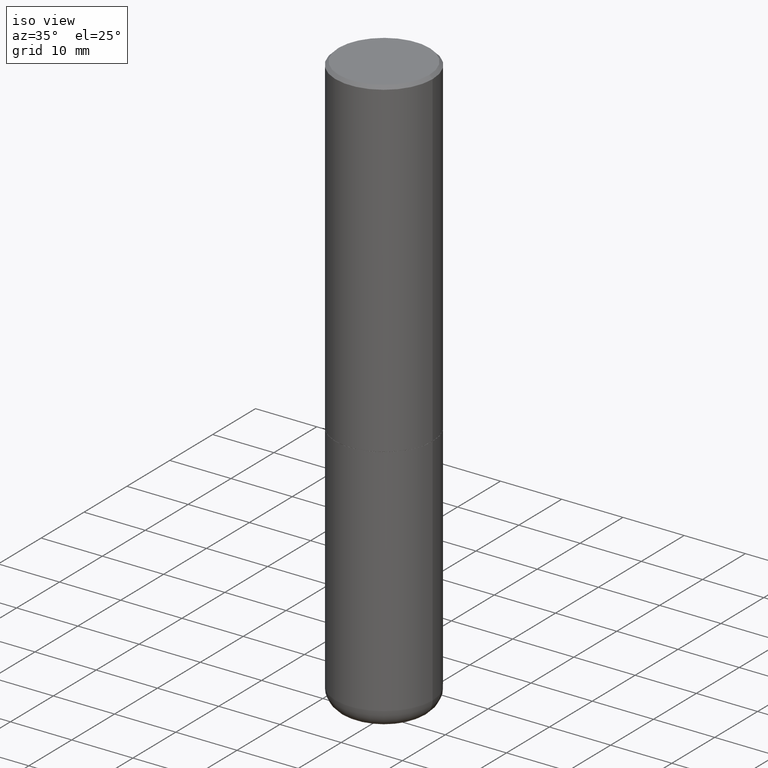
[diagram: clean part render]
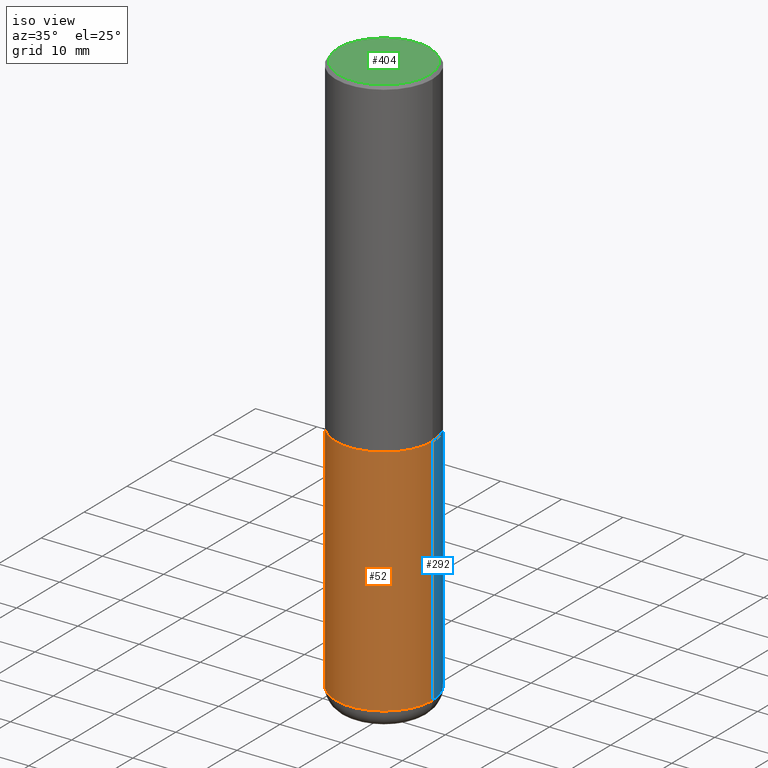
[diagram: same view with three faces highlighted in distinct colors, each labeled with its STEP entity id]
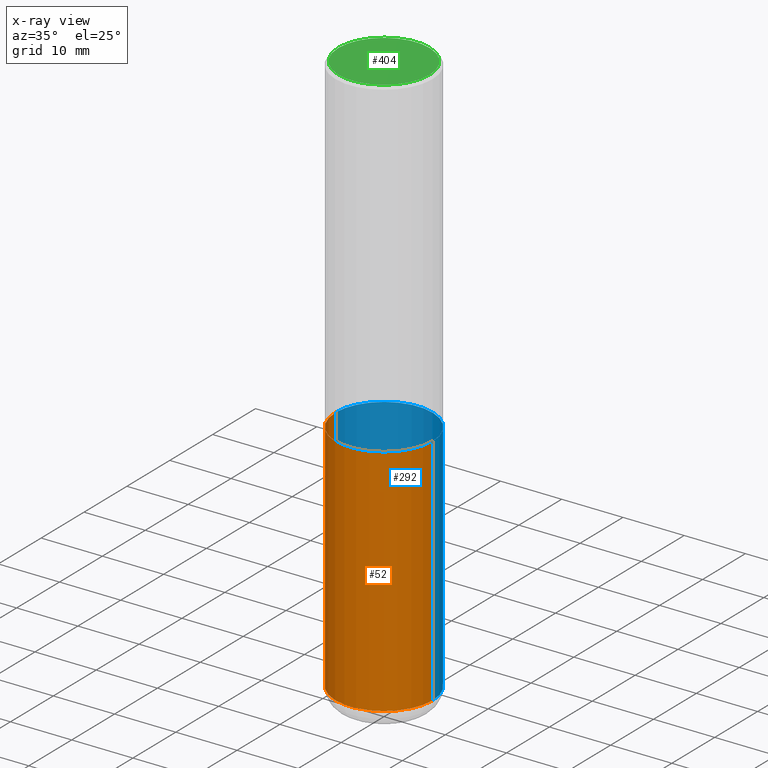
[diagram: x-ray of the same camera — body ghosted, the three highlighted faces saturated]
A machine part, iso view with three faces highlighted in distinct colors.
The next image is the same camera in x-ray (body ghosted, the three faces saturated) — at least one of them is partly hidden behind the body in this view.
Their STEP definitions:

[orange] entity #52 — the highlighted cylindrical surface (partial cylindrical patch) has radius 7.9375 mm, axis along (-0, 0, 1).
#10 = CARTESIAN_POINT ( 'NONE',  ( -0.3125000000000000000, -7.826299479965492348E-15, -2.125000000000000000 ) ) ;
#13 = DIRECTION ( 'NONE',  ( -2.445468806185136877E-29, 3.491481338843145188E-15, 1.000000000000000000 ) ) ;
#29 = FACE_OUTER_BOUND ( 'NONE', #123, .T. ) ;
#38 = DIRECTION ( 'NONE',  ( -2.445468806185136597E-29, 3.491481338843145583E-15, 1.000000000000000000 ) ) ;
#52 = ADVANCED_FACE ( 'NONE', ( #29 ), #299, .T. ) ;
#53 = CARTESIAN_POINT ( 'NONE',  ( 0.000000000000000000, 0.000000000000000000, 0.000000000000000000 ) ) ;
#63 = AXIS2_PLACEMENT_3D ( 'NONE', #113, #448, #136 ) ;
#83 = LINE ( 'NONE', #240, #411 ) ;
#113 = CARTESIAN_POINT ( 'NONE',  ( 5.196621213143415268E-29, -7.419397845041685201E-15, -2.125000000000000000 ) ) ;
#123 = EDGE_LOOP ( 'NONE', ( #414, #270, #197, #392 ) ) ;
#136 = DIRECTION ( 'NONE',  ( 1.000000000000000000, -6.982962677686265133E-15, 0.000000000000000000 ) ) ;
#144 = EDGE_CURVE ( 'NONE', #225, #449, #417, .T. ) ;
#163 = CARTESIAN_POINT ( 'NONE',  ( 0.3125000000000000000, -1.485626905016688558E-14, -3.630004569232299971 ) ) ;
#171 = CARTESIAN_POINT ( 'NONE',  ( 0.3125000000000000000, -9.601573681818641971E-15, -2.125000000000000000 ) ) ;
#172 = DIRECTION ( 'NONE',  ( -2.445468806185136597E-29, 3.491481338843145583E-15, 1.000000000000000000 ) ) ;
#180 = DIRECTION ( 'NONE',  ( 1.000000000000000000, -6.982962677686266711E-15, 4.876176775795936353E-29 ) ) ;
#182 = EDGE_CURVE ( 'NONE', #199, #449, #83, .T. ) ;
#197 = ORIENTED_EDGE ( 'NONE', *, *, #182, .T. ) ;
#199 = VERTEX_POINT ( 'NONE', #163 ) ;
#211 = AXIS2_PLACEMENT_3D ( 'NONE', #53, #172, #180 ) ;
#225 = VERTEX_POINT ( 'NONE', #10 ) ;
#229 = VECTOR ( 'NONE', #13, 39.37007874015748143 ) ;
#240 = CARTESIAN_POINT ( 'NONE',  ( 0.3125000000000000000, -2.182175836776958347E-15, 1.523805242436230075E-29 ) ) ;
#248 = EDGE_CURVE ( 'NONE', #461, #225, #424, .T. ) ;
#250 = CIRCLE ( 'NONE', #434, 0.3125000000000000000 ) ;
#270 = ORIENTED_EDGE ( 'NONE', *, *, #322, .T. ) ;
#299 = CYLINDRICAL_SURFACE ( 'NONE', #211, 0.3125000000000000000 ) ;
#322 = EDGE_CURVE ( 'NONE', #461, #199, #250, .T. ) ;
#391 = CARTESIAN_POINT ( 'NONE',  ( 8.877062940367102659E-29, -1.267409321338992723E-14, -3.630004569232299971 ) ) ;
#392 = ORIENTED_EDGE ( 'NONE', *, *, #144, .F. ) ;
#397 = DIRECTION ( 'NONE',  ( -2.445468806185136877E-29, 3.491481338843145188E-15, 1.000000000000000000 ) ) ;
#398 = CARTESIAN_POINT ( 'NONE',  ( -0.3125000000000000000, 2.220446049250313081E-15, -1.537167215704658232E-29 ) ) ;
#411 = VECTOR ( 'NONE', #397, 39.37007874015748143 ) ;
#414 = ORIENTED_EDGE ( 'NONE', *, *, #248, .F. ) ;
#417 = CIRCLE ( 'NONE', #63, 0.3125000000000000000 ) ;
#424 = LINE ( 'NONE', #398, #229 ) ;
#434 = AXIS2_PLACEMENT_3D ( 'NONE', #391, #38, #462 ) ;
#448 = DIRECTION ( 'NONE',  ( -2.445468806185136597E-29, 3.491481338843145583E-15, 1.000000000000000000 ) ) ;
#449 = VERTEX_POINT ( 'NONE', #171 ) ;
#461 = VERTEX_POINT ( 'NONE', #471 ) ;
#462 = DIRECTION ( 'NONE',  ( 1.000000000000000000, -6.982962677686269077E-15, 0.000000000000000000 ) ) ;
#471 = CARTESIAN_POINT ( 'NONE',  ( -0.3125000000000000000, -7.826299479965492348E-15, -3.630004569232299971 ) ) ;

[blue] entity #292 — the highlighted cylindrical surface (partial cylindrical patch) has radius 7.9375 mm, axis along (-0, 0, 1).
#4 = AXIS2_PLACEMENT_3D ( 'NONE', #116, #432, #165 ) ;
#6 = CIRCLE ( 'NONE', #4, 0.3125000000000000000 ) ;
#10 = CARTESIAN_POINT ( 'NONE',  ( -0.3125000000000000000, -7.826299479965492348E-15, -2.125000000000000000 ) ) ;
#13 = DIRECTION ( 'NONE',  ( -2.445468806185136877E-29, 3.491481338843145188E-15, 1.000000000000000000 ) ) ;
#32 = ORIENTED_EDGE ( 'NONE', *, *, #57, .F. ) ;
#47 = FACE_OUTER_BOUND ( 'NONE', #382, .T. ) ;
#48 = CIRCLE ( 'NONE', #416, 0.3125000000000000000 ) ;
#57 = EDGE_CURVE ( 'NONE', #449, #225, #48, .T. ) ;
#59 = DIRECTION ( 'NONE',  ( 1.000000000000000000, -6.982962677686265133E-15, 0.000000000000000000 ) ) ;
#83 = LINE ( 'NONE', #240, #411 ) ;
#116 = CARTESIAN_POINT ( 'NONE',  ( 8.877062940367102659E-29, -1.267409321338992723E-14, -3.630004569232299971 ) ) ;
#120 = ORIENTED_EDGE ( 'NONE', *, *, #182, .F. ) ;
#130 = CYLINDRICAL_SURFACE ( 'NONE', #475, 0.3125000000000000000 ) ;
#163 = CARTESIAN_POINT ( 'NONE',  ( 0.3125000000000000000, -1.485626905016688558E-14, -3.630004569232299971 ) ) ;
#165 = DIRECTION ( 'NONE',  ( 1.000000000000000000, -6.982962677686269077E-15, 0.000000000000000000 ) ) ;
#171 = CARTESIAN_POINT ( 'NONE',  ( 0.3125000000000000000, -9.601573681818641971E-15, -2.125000000000000000 ) ) ;
#176 = CARTESIAN_POINT ( 'NONE',  ( 5.196621213143415268E-29, -7.419397845041685201E-15, -2.125000000000000000 ) ) ;
#182 = EDGE_CURVE ( 'NONE', #199, #449, #83, .T. ) ;
#192 = ORIENTED_EDGE ( 'NONE', *, *, #248, .T. ) ;
#199 = VERTEX_POINT ( 'NONE', #163 ) ;
#225 = VERTEX_POINT ( 'NONE', #10 ) ;
#229 = VECTOR ( 'NONE', #13, 39.37007874015748143 ) ;
#240 = CARTESIAN_POINT ( 'NONE',  ( 0.3125000000000000000, -2.182175836776958347E-15, 1.523805242436230075E-29 ) ) ;
#242 = DIRECTION ( 'NONE',  ( 1.000000000000000000, -6.982962677686266711E-15, 4.876176775795936353E-29 ) ) ;
#248 = EDGE_CURVE ( 'NONE', #461, #225, #424, .T. ) ;
#268 = EDGE_CURVE ( 'NONE', #199, #461, #6, .T. ) ;
#291 = DIRECTION ( 'NONE',  ( -2.445468806185136597E-29, 3.491481338843145583E-15, 1.000000000000000000 ) ) ;
#292 = ADVANCED_FACE ( 'NONE', ( #47 ), #130, .T. ) ;
#307 = ORIENTED_EDGE ( 'NONE', *, *, #268, .T. ) ;
#310 = DIRECTION ( 'NONE',  ( -2.445468806185136597E-29, 3.491481338843145583E-15, 1.000000000000000000 ) ) ;
#350 = CARTESIAN_POINT ( 'NONE',  ( 0.000000000000000000, 0.000000000000000000, 0.000000000000000000 ) ) ;
#382 = EDGE_LOOP ( 'NONE', ( #307, #192, #32, #120 ) ) ;
#397 = DIRECTION ( 'NONE',  ( -2.445468806185136877E-29, 3.491481338843145188E-15, 1.000000000000000000 ) ) ;
#398 = CARTESIAN_POINT ( 'NONE',  ( -0.3125000000000000000, 2.220446049250313081E-15, -1.537167215704658232E-29 ) ) ;
#411 = VECTOR ( 'NONE', #397, 39.37007874015748143 ) ;
#416 = AXIS2_PLACEMENT_3D ( 'NONE', #176, #291, #59 ) ;
#424 = LINE ( 'NONE', #398, #229 ) ;
#432 = DIRECTION ( 'NONE',  ( -2.445468806185136597E-29, 3.491481338843145583E-15, 1.000000000000000000 ) ) ;
#449 = VERTEX_POINT ( 'NONE', #171 ) ;
#461 = VERTEX_POINT ( 'NONE', #471 ) ;
#471 = CARTESIAN_POINT ( 'NONE',  ( -0.3125000000000000000, -7.826299479965492348E-15, -3.630004569232299971 ) ) ;
#475 = AXIS2_PLACEMENT_3D ( 'NONE', #350, #310, #242 ) ;

[green] entity #404 — the highlighted planar face has unit normal (0, -0, -1).
#16 = EDGE_CURVE ( 'NONE', #28, #37, #324, .T. ) ;
#21 = DIRECTION ( 'NONE',  ( -1.000000000000000000, 6.982962677686265922E-15, -4.876176775795935793E-29 ) ) ;
#28 = VERTEX_POINT ( 'NONE', #473 ) ;
#34 = EDGE_CURVE ( 'NONE', #37, #28, #384, .T. ) ;
#37 = VERTEX_POINT ( 'NONE', #108 ) ;
#71 = ORIENTED_EDGE ( 'NONE', *, *, #16, .T. ) ;
#73 = AXIS2_PLACEMENT_3D ( 'NONE', #363, #132, #442 ) ;
#106 = ORIENTED_EDGE ( 'NONE', *, *, #34, .T. ) ;
#108 = CARTESIAN_POINT ( 'NONE',  ( 0.2924999999999989830, -2.110215457714314014E-15, 4.268512490114932791E-18 ) ) ;
#131 = CARTESIAN_POINT ( 'NONE',  ( -1.043851414335219820E-46, 1.490343170380447200E-32, 4.268512490100411279E-18 ) ) ;
#132 = DIRECTION ( 'NONE',  ( -2.445468806185136597E-29, 3.491481338843145583E-15, 1.000000000000000000 ) ) ;
#193 = AXIS2_PLACEMENT_3D ( 'NONE', #480, #361, #21 ) ;
#196 = DIRECTION ( 'NONE',  ( 1.000000000000000000, -6.982962677686266711E-15, 4.876067333457706292E-29 ) ) ;
#218 = PLANE ( 'NONE',  #193 ) ;
#324 = CIRCLE ( 'NONE', #466, 0.2924999999999989830 ) ;
#343 = EDGE_LOOP ( 'NONE', ( #71, #106 ) ) ;
#361 = DIRECTION ( 'NONE',  ( 2.438088387897960049E-29, -3.491481338843145188E-15, -1.000000000000000000 ) ) ;
#363 = CARTESIAN_POINT ( 'NONE',  ( -1.043851414335219820E-46, 1.490343170380447200E-32, 4.268512490100411279E-18 ) ) ;
#384 = CIRCLE ( 'NONE', #73, 0.2924999999999989830 ) ;
#404 = ADVANCED_FACE ( 'NONE', ( #406 ), #218, .F. ) ;
#406 = FACE_OUTER_BOUND ( 'NONE', #343, .T. ) ;
#433 = DIRECTION ( 'NONE',  ( -2.445468806185136597E-29, 3.491481338843145583E-15, 1.000000000000000000 ) ) ;
#442 = DIRECTION ( 'NONE',  ( 1.000000000000000000, -6.982962677686266711E-15, 4.876067333457706292E-29 ) ) ;
#466 = AXIS2_PLACEMENT_3D ( 'NONE', #131, #433, #196 ) ;
#473 = CARTESIAN_POINT ( 'NONE',  ( -0.2924999999999989830, 2.077431396611657483E-15, 4.268512490086005323E-18 ) ) ;
#480 = CARTESIAN_POINT ( 'NONE',  ( 2.042516583223225834E-15, 0.2924999999999989830, -1.019124035366566451E-15 ) ) ;